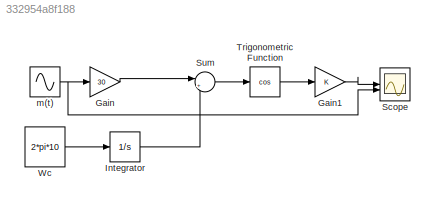
MODEL slx_332954a8f188
KIND model
CONFIG AbsTol = auto
CONFIG EnableMultiTasking = off
CONFIG FixedStep = 0.001
CONFIG MaxStep = auto
CONFIG MinStep = auto
CONFIG RelTol = 1e-3
CONFIG SampleTimeConstraint = Unconstrained
CONFIG SolverName = FixedStepAuto
CONFIG StartTime = 0.0
CONFIG StopTime = 10
BLOCK [Gain] Gain
  Gain = 30
BLOCK [Gain] Gain1
BLOCK [Integrator] Integrator
BLOCK [Scope] Scope
  Floating = off
  NumInputPorts = 2
  ScopeSpecificationString = Simulink.scopes.TimeScopeBlockCfg('CurrentConfiguration', extmgr.ConfigurationSet(extmgr.Configuration('Core','General UI',true),extmgr.Configuration('Core','Source UI',true),extmgr.Configuration('Sources','WiredSimulink',true),extmgr.Configuration('Visuals','Time Domain',true,'SerializedDisplays',{struct('MinYLimReal','-1.25','MaxYLimReal','1.25','YLabelReal','','MinYLimMag','0.00000','MaxYLimMag...<+2171ch>
BLOCK [Sum] Sum
  Inputs = |++
BLOCK [Trigonometry] Trigonometric Function
  Operator = cos
BLOCK [Constant] Wc
  Value = 2*pi*10
BLOCK [Sin] m(t)
  Frequency = 1*2*pi
  SampleTime = 0
LINE Gain1:1 -> Scope:1
LINE Gain:1 -> Sum:1
LINE Integrator:1 -> Sum:2
LINE Sum:1 -> Trigonometric Function:1
LINE Trigonometric Function:1 -> Gain1:1
LINE Wc:1 -> Integrator:1
NET m(t):1 -> Gain:1, Scope:2
note: NET lines group one-source signal fan-out (src -> all destinations, sorted); 1:1 wires keep LINE
